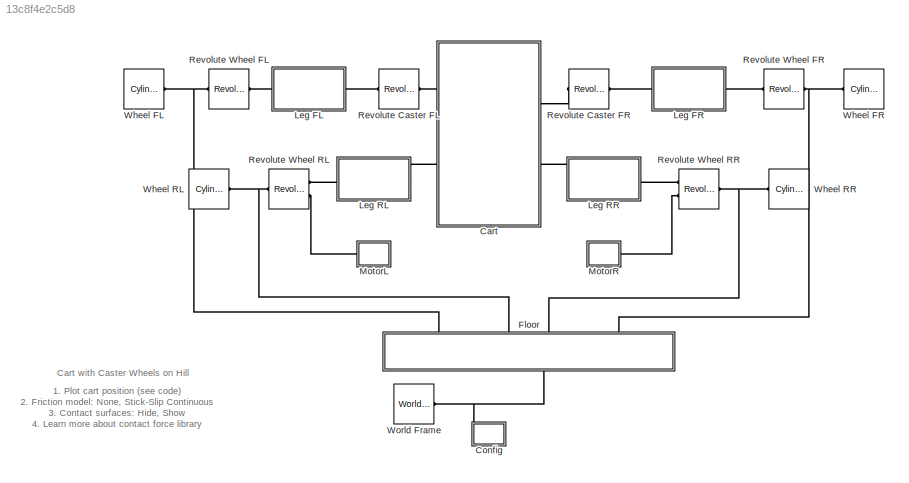
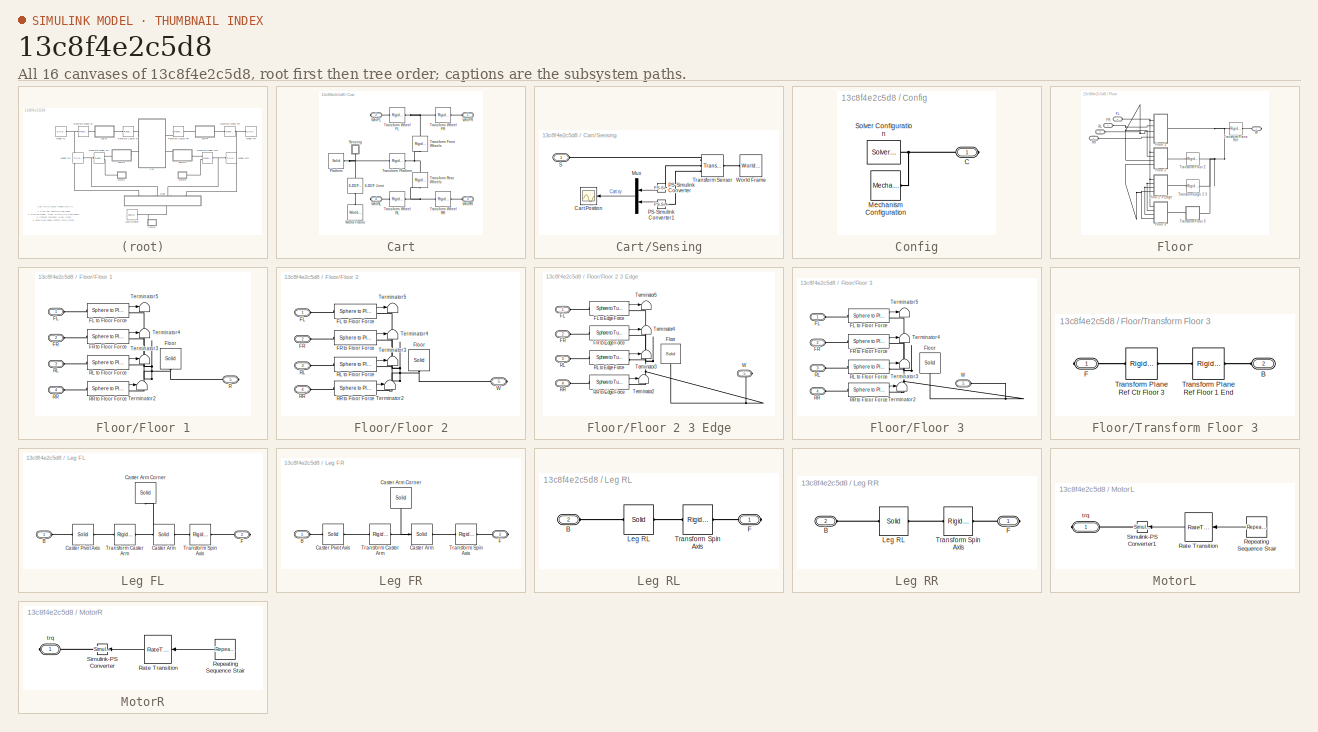
[diagram: thumbnail index - all 16 canvases of the model, root first then tree order]
MODEL slx_13c8f4e2c5d8
KIND model
CONFIG AbsTol = 1e-5
CONFIG EnableMultiTasking = on
CONFIG FixedStep = 1e-3
CONFIG MaxStep = 0.01
CONFIG MinStep = auto
CONFIG RelTol = 1e-4
CONFIG SampleTimeConstraint = Unconstrained
CONFIG Solver = ode23t
CONFIG SolverName = ode23t
CONFIG StartFcn = tic;
CONFIG StartTime = 0.0
CONFIG StopFcn = Elapsed_Sim_Time = toc;\ndisp(['Elapsed Sim Time = ' num2str(Elapsed_Sim_Time)]);\n
CONFIG StopTime = 2.5
WORKSPACE source: MATLAB code (in-file)
WORKSPACE code: whl.rad = 0.02;
WORKSPACE code: whl.thickness = 0.005;
WORKSPACE code: axle.length = 0.2;
WORKSPACE code: axle.radius = 0.005;
WORKSPACE code: platform.width = 0.1;
WORKSPACE code: platform.length = 0.15;
WORKSPACE code: platform.thickness = 0.005;
WORKSPACE code: platform.offset = 0.05;
WORKSPACE code: caster_axis.rad = 0.005;
WORKSPACE code: caster_axis.length = 0.03;
WORKSPACE code: bumper.rad = platform.offset+whl.rad;
WORKSPACE code: table.length = 0.5;
WORKSPACE code: table.thickness = 0.01;
WORKSPACE code: tableWhl.contact.k = 1e3;
WORKSPACE code: tableWhl.contact.b = 1e2;
WORKSPACE code: steel.density = 8000; %kg/m^3
WORKSPACE code: start_pos.x = -0.2;
WORKSPACE code: start_pos.y = 0.2;
WORKSPACE l_whl_trq = [0 0 0 0.5 0 0 0 -0.5 1.0 0 0 0 -1.0 0.5 0 0 0 -0.5 -1.5 0 0 0 1.5].'*0.00005
WORKSPACE r_whl_trq = [0 0 0 2.0 0 0 0 -2.0 1.0 0 0 0 -1.0 1.0 0 0 0 -1.0 -1.5 0 0 0 1.5].'*0.00005
WORKSPACE l_whl_trq = [-0.45 0 -0.1 0 0]*7.5e-5*100
WORKSPACE r_whl_trq = [-0.45 0 -0.1 0 0]*7.5e-5*100
WORKSPACE muk = 0.7
WORKSPACE mus = 0.5
WORKSPACE vth = 1e-2  (= 0.01)
WORKSPACE flr1_len = 1
WORKSPACE flr1_wid = 0.5
WORKSPACE flr1_dep = 0.01
WORKSPACE flr1_ang = 0
WORKSPACE flr2_len = flr1_len/8  (= 0.125)
WORKSPACE flr2_wid = flr1_wid  (= 0.5)
WORKSPACE flr2_dep = flr1_dep  (= 0.01)
WORKSPACE flr2_ang = 10
WORKSPACE flr3_len = flr1_len/3  (= 0.333333333333)
WORKSPACE flr3_wid = flr1_wid  (= 0.5)
WORKSPACE flr3_dep = flr1_dep  (= 0.01)
WORKSPACE flr3_ang = 0
WORKSPACE flr_dep_pcnt = 0.1
WORKSPACE flr_clr = [1 1 1]*0.95
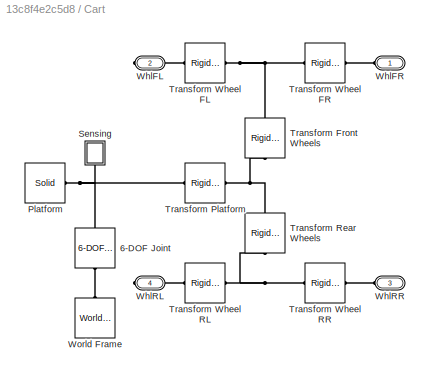
BLOCK [SubSystem] Cart
  Ports = [0, 0, 0, 0, 0, 2, 2]
  RequestExecContextInheritance = off
  Tag = CustomStyle
BLOCK [Reference] Cart/6-DOF Joint  REF=sm_lib/Joints/6-DOF Joint
  Ports = [0, 0, 0, 0, 0, 1, 1]
  SourceBlock = sm_lib/Joints/6-DOF Joint
  SourceProductBaseCode = MS
  SourceProductName = Simscape Multibody
  SourceType = 6-DOF Joint
BLOCK [Reference] Cart/Platform  REF=sm_lib/Body Elements/Solid
  Ports = [0, 0, 0, 0, 0, 0, 1]
  SourceBlock = sm_lib/Body Elements/Solid
  SourceProductBaseCode = MS
  SourceProductName = Simscape Multibody
  SourceType = Solid
BLOCK [SubSystem] Cart/Sensing
  Ports = [0, 0, 0, 0, 0, 1]
  RequestExecContextInheritance = off
BLOCK [Scope] Cart/Sensing/Cart Position
  Floating = off
  NumInputPorts = 1
  Ports = [1]
  ScopeSpecificationString = Simulink.scopes.TimeScopeBlockCfg('CurrentConfiguration', extmgr.ConfigurationSet(extmgr.Configuration('Core','General UI',true),extmgr.Configuration('Core','Source UI',true),extmgr.Configuration('Sources','WiredSimulink',true,'DataLoggingVariableName','ScopeData1','DataLoggingSaveFormat','Array','DataLoggingDecimation','1','DataLoggingDecimateData',true),extmgr.Configuration('Visuals','Time Domai...<+1669ch>
BLOCK [Mux] Cart/Sensing/Mux
  DisplayOption = bar
  Inputs = 2
  Ports = [2, 1]
BLOCK [Reference] Cart/Sensing/PS-Simulink Converter  REF=nesl_utility/PS-Simulink
Converter
  Ports = [0, 1, 0, 0, 0, 1]
  SourceBlock = nesl_utility/PS-Simulink\nConverter
  SourceProductBaseCode = SS
  SourceProductName = Simscape
  SourceType = PS-Simulink\nConverter
BLOCK [Reference] Cart/Sensing/PS-Simulink Converter1  REF=nesl_utility/PS-Simulink
Converter
  Ports = [0, 1, 0, 0, 0, 1]
  SourceBlock = nesl_utility/PS-Simulink\nConverter
  SourceProductBaseCode = SS
  SourceProductName = Simscape
  SourceType = PS-Simulink\nConverter
BLOCK [PMIOPort] Cart/Sensing/S
  Side = Left
BLOCK [Reference] Cart/Sensing/Transform Sensor  REF=sm_lib/Frames and
Transforms/Transform
Sensor
  Ports = [0, 0, 0, 0, 0, 1, 3]
  SourceBlock = sm_lib/Frames and\nTransforms/Transform\nSensor
  SourceProductBaseCode = MS
  SourceProductName = Simscape Multibody
  SourceType = Transform\nSensor
BLOCK [Reference] Cart/Sensing/World Frame  REF=sm_lib/Frames and
Transforms/World Frame
  Ports = [0, 0, 0, 0, 0, 0, 1]
  SourceBlock = sm_lib/Frames and\nTransforms/World Frame
  SourceProductBaseCode = MS
  SourceProductName = Simscape Multibody
  SourceType = World Frame
BLOCK [Reference] Cart/Transform Front Wheels  REF=sm_lib/Frames and
Transforms/Rigid
Transform
  Ports = [0, 0, 0, 0, 0, 1, 1]
  SourceBlock = sm_lib/Frames and\nTransforms/Rigid\nTransform
  SourceProductBaseCode = MS
  SourceProductName = Simscape Multibody
  SourceType = Rigid\nTransform
BLOCK [Reference] Cart/Transform Platform  REF=sm_lib/Frames and
Transforms/Rigid
Transform
  Ports = [0, 0, 0, 0, 0, 1, 1]
  SourceBlock = sm_lib/Frames and\nTransforms/Rigid\nTransform
  SourceProductBaseCode = MS
  SourceProductName = Simscape Multibody
  SourceType = Rigid\nTransform
BLOCK [Reference] Cart/Transform Rear Wheels  REF=sm_lib/Frames and
Transforms/Rigid
Transform
  Ports = [0, 0, 0, 0, 0, 1, 1]
  SourceBlock = sm_lib/Frames and\nTransforms/Rigid\nTransform
  SourceProductBaseCode = MS
  SourceProductName = Simscape Multibody
  SourceType = Rigid\nTransform
BLOCK [Reference] Cart/Transform Wheel FL  REF=sm_lib/Frames and
Transforms/Rigid
Transform
  Ports = [0, 0, 0, 0, 0, 1, 1]
  SourceBlock = sm_lib/Frames and\nTransforms/Rigid\nTransform
  SourceProductBaseCode = MS
  SourceProductName = Simscape Multibody
  SourceType = Rigid\nTransform
BLOCK [Reference] Cart/Transform Wheel FR  REF=sm_lib/Frames and
Transforms/Rigid
Transform
  Ports = [0, 0, 0, 0, 0, 1, 1]
  SourceBlock = sm_lib/Frames and\nTransforms/Rigid\nTransform
  SourceProductBaseCode = MS
  SourceProductName = Simscape Multibody
  SourceType = Rigid\nTransform
BLOCK [Reference] Cart/Transform Wheel RL  REF=sm_lib/Frames and
Transforms/Rigid
Transform
  Ports = [0, 0, 0, 0, 0, 1, 1]
  SourceBlock = sm_lib/Frames and\nTransforms/Rigid\nTransform
  SourceProductBaseCode = MS
  SourceProductName = Simscape Multibody
  SourceType = Rigid\nTransform
BLOCK [Reference] Cart/Transform Wheel RR  REF=sm_lib/Frames and
Transforms/Rigid
Transform
  Ports = [0, 0, 0, 0, 0, 1, 1]
  SourceBlock = sm_lib/Frames and\nTransforms/Rigid\nTransform
  SourceProductBaseCode = MS
  SourceProductName = Simscape Multibody
  SourceType = Rigid\nTransform
BLOCK [PMIOPort] Cart/WhlFL
  Port = 2
  Side = Right
BLOCK [PMIOPort] Cart/WhlFR
  Side = Left
BLOCK [PMIOPort] Cart/WhlRL
  Port = 4
  Side = Right
BLOCK [PMIOPort] Cart/WhlRR
  Port = 3
  Side = Left
BLOCK [Reference] Cart/World Frame  REF=sm_lib/Frames and
Transforms/World Frame
  Ports = [0, 0, 0, 0, 0, 0, 1]
  SourceBlock = sm_lib/Frames and\nTransforms/World Frame
  SourceProductBaseCode = MS
  SourceProductName = Simscape Multibody
  SourceType = World Frame
BLOCK [SubSystem] Config
  Ports = [0, 0, 0, 0, 0, 0, 1]
  RequestExecContextInheritance = off
BLOCK [PMIOPort] Config/C
  Side = Right
BLOCK [Reference] Config/Mechanism Configuration  REF=sm_lib/Utilities/Mechanism
Configuration
  Ports = [0, 0, 0, 0, 0, 0, 1]
  SourceBlock = sm_lib/Utilities/Mechanism\nConfiguration
  SourceProductBaseCode = MS
  SourceProductName = Simscape Multibody
  SourceType = Mechanism\nConfiguration
BLOCK [Reference] Config/Solver Configuration  REF=nesl_utility/Solver
Configuration
  Ports = [0, 0, 0, 0, 0, 0, 1]
  SourceBlock = nesl_utility/Solver\nConfiguration
  SourceProductBaseCode = SS
  SourceProductName = Simscape
  SourceType = Solver\nConfiguration
BLOCK [SubSystem] Floor
  Ports = [0, 0, 0, 0, 0, 4, 1]
  RequestExecContextInheritance = off
BLOCK [PMIOPort] Floor/FL
  Port = 2
  Side = Left
BLOCK [PMIOPort] Floor/FR
  Port = 5
  Side = Left
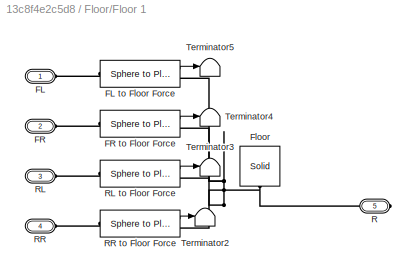
BLOCK [SubSystem] Floor/Floor 1
  Ports = [0, 0, 0, 0, 0, 4, 1]
  RequestExecContextInheritance = off
  Tag = PublishSubsystem
BLOCK [PMIOPort] Floor/Floor 1/FL
  Side = Left
BLOCK [Reference] Floor/Floor 1/FL to Floor Force  REF=Contact_Forces_Lib/3D/Sphere to Plane Force
  Ports = [0, 1, 0, 0, 0, 1, 1]
  SourceBlock = Contact_Forces_Lib/3D/Sphere to Plane Force
  SourceProductName = Simscape Multibody Contact Forces Library
  SourceType = Sphere to Plane Force
BLOCK [PMIOPort] Floor/Floor 1/FR
  Port = 2
  Side = Left
BLOCK [Reference] Floor/Floor 1/FR to Floor Force  REF=Contact_Forces_Lib/3D/Sphere to Plane Force
  Ports = [0, 1, 0, 0, 0, 1, 1]
  SourceBlock = Contact_Forces_Lib/3D/Sphere to Plane Force
  SourceProductName = Simscape Multibody Contact Forces Library
  SourceType = Sphere to Plane Force
BLOCK [Reference] Floor/Floor 1/Floor  REF=sm_lib/Body Elements/Solid
  Ports = [0, 0, 0, 0, 0, 0, 1]
  SourceBlock = sm_lib/Body Elements/Solid
  SourceProductBaseCode = MS
  SourceProductName = Simscape Multibody
  SourceType = Solid
BLOCK [PMIOPort] Floor/Floor 1/R
  Port = 5
  Side = Right
BLOCK [PMIOPort] Floor/Floor 1/RL
  Port = 3
  Side = Left
BLOCK [Reference] Floor/Floor 1/RL to Floor Force  REF=Contact_Forces_Lib/3D/Sphere to Plane Force
  Ports = [0, 1, 0, 0, 0, 1, 1]
  SourceBlock = Contact_Forces_Lib/3D/Sphere to Plane Force
  SourceProductName = Simscape Multibody Contact Forces Library
  SourceType = Sphere to Plane Force
BLOCK [PMIOPort] Floor/Floor 1/RR
  Port = 4
  Side = Left
BLOCK [Reference] Floor/Floor 1/RR to Floor Force  REF=Contact_Forces_Lib/3D/Sphere to Plane Force
  Ports = [0, 1, 0, 0, 0, 1, 1]
  SourceBlock = Contact_Forces_Lib/3D/Sphere to Plane Force
  SourceProductName = Simscape Multibody Contact Forces Library
  SourceType = Sphere to Plane Force
BLOCK [Terminator] Floor/Floor 1/Terminator2
BLOCK [Terminator] Floor/Floor 1/Terminator3
BLOCK [Terminator] Floor/Floor 1/Terminator4
BLOCK [Terminator] Floor/Floor 1/Terminator5
BLOCK [SubSystem] Floor/Floor 2
  Ports = [0, 0, 0, 0, 0, 4, 1]
  RequestExecContextInheritance = off
BLOCK [SubSystem] Floor/Floor 2 3 Edge
  Ports = [0, 0, 0, 0, 0, 4, 1]
  RequestExecContextInheritance = off
BLOCK [PMIOPort] Floor/Floor 2 3 Edge/FL
  Side = Left
BLOCK [Reference] Floor/Floor 2 3 Edge/FL to Edge Force  REF=Contact_Forces_Lib/3D/Sphere to Tube Force
  Ports = [0, 1, 0, 0, 0, 1, 1]
  SourceBlock = Contact_Forces_Lib/3D/Sphere to Tube Force
  SourceProductName = Simscape Multibody Contact Forces Library
  SourceType = Sphere to Tube Force
BLOCK [PMIOPort] Floor/Floor 2 3 Edge/FR
  Port = 2
  Side = Left
BLOCK [Reference] Floor/Floor 2 3 Edge/FR to Edge Force  REF=Contact_Forces_Lib/3D/Sphere to Tube Force
  Ports = [0, 1, 0, 0, 0, 1, 1]
  SourceBlock = Contact_Forces_Lib/3D/Sphere to Tube Force
  SourceProductName = Simscape Multibody Contact Forces Library
  SourceType = Sphere to Tube Force
BLOCK [Reference] Floor/Floor 2 3 Edge/Floor  REF=sm_lib/Body Elements/Solid
  Ports = [0, 0, 0, 0, 0, 0, 1]
  SourceBlock = sm_lib/Body Elements/Solid
  SourceProductBaseCode = MS
  SourceProductName = Simscape Multibody
  SourceType = Solid
BLOCK [PMIOPort] Floor/Floor 2 3 Edge/RL
  Port = 3
  Side = Left
BLOCK [Reference] Floor/Floor 2 3 Edge/RL to Edge Force  REF=Contact_Forces_Lib/3D/Sphere to Tube Force
  Ports = [0, 1, 0, 0, 0, 1, 1]
  SourceBlock = Contact_Forces_Lib/3D/Sphere to Tube Force
  SourceProductName = Simscape Multibody Contact Forces Library
  SourceType = Sphere to Tube Force
BLOCK [PMIOPort] Floor/Floor 2 3 Edge/RR
  Port = 4
  Side = Left
BLOCK [Reference] Floor/Floor 2 3 Edge/RR to Edge Force  REF=Contact_Forces_Lib/3D/Sphere to Tube Force
  Ports = [0, 1, 0, 0, 0, 1, 1]
  SourceBlock = Contact_Forces_Lib/3D/Sphere to Tube Force
  SourceProductName = Simscape Multibody Contact Forces Library
  SourceType = Sphere to Tube Force
BLOCK [Terminator] Floor/Floor 2 3 Edge/Terminator2
BLOCK [Terminator] Floor/Floor 2 3 Edge/Terminator3
BLOCK [Terminator] Floor/Floor 2 3 Edge/Terminator4
BLOCK [Terminator] Floor/Floor 2 3 Edge/Terminator5
BLOCK [PMIOPort] Floor/Floor 2 3 Edge/W
  Port = 5
  Side = Right
BLOCK [PMIOPort] Floor/Floor 2/FL
  Side = Left
BLOCK [Reference] Floor/Floor 2/FL to Floor Force  REF=Contact_Forces_Lib/3D/Sphere to Plane Force
  Ports = [0, 1, 0, 0, 0, 1, 1]
  SourceBlock = Contact_Forces_Lib/3D/Sphere to Plane Force
  SourceProductName = Simscape Multibody Contact Forces Library
  SourceType = Sphere to Plane Force
BLOCK [PMIOPort] Floor/Floor 2/FR
  Port = 2
  Side = Left
BLOCK [Reference] Floor/Floor 2/FR to Floor Force  REF=Contact_Forces_Lib/3D/Sphere to Plane Force
  Ports = [0, 1, 0, 0, 0, 1, 1]
  SourceBlock = Contact_Forces_Lib/3D/Sphere to Plane Force
  SourceProductName = Simscape Multibody Contact Forces Library
  SourceType = Sphere to Plane Force
BLOCK [Reference] Floor/Floor 2/Floor  REF=sm_lib/Body Elements/Solid
  Ports = [0, 0, 0, 0, 0, 0, 1]
  SourceBlock = sm_lib/Body Elements/Solid
  SourceProductBaseCode = MS
  SourceProductName = Simscape Multibody
  SourceType = Solid
BLOCK [PMIOPort] Floor/Floor 2/RL
  Port = 3
  Side = Left
BLOCK [Reference] Floor/Floor 2/RL to Floor Force  REF=Contact_Forces_Lib/3D/Sphere to Plane Force
  Ports = [0, 1, 0, 0, 0, 1, 1]
  SourceBlock = Contact_Forces_Lib/3D/Sphere to Plane Force
  SourceProductName = Simscape Multibody Contact Forces Library
  SourceType = Sphere to Plane Force
BLOCK [PMIOPort] Floor/Floor 2/RR
  Port = 4
  Side = Left
BLOCK [Reference] Floor/Floor 2/RR to Floor Force  REF=Contact_Forces_Lib/3D/Sphere to Plane Force
  Ports = [0, 1, 0, 0, 0, 1, 1]
  SourceBlock = Contact_Forces_Lib/3D/Sphere to Plane Force
  SourceProductName = Simscape Multibody Contact Forces Library
  SourceType = Sphere to Plane Force
BLOCK [Terminator] Floor/Floor 2/Terminator2
BLOCK [Terminator] Floor/Floor 2/Terminator3
BLOCK [Terminator] Floor/Floor 2/Terminator4
BLOCK [Terminator] Floor/Floor 2/Terminator5
BLOCK [PMIOPort] Floor/Floor 2/W
  Port = 5
  Side = Right
BLOCK [SubSystem] Floor/Floor 3
  Ports = [0, 0, 0, 0, 0, 4, 1]
  RequestExecContextInheritance = off
BLOCK [PMIOPort] Floor/Floor 3/FL
  Side = Left
BLOCK [Reference] Floor/Floor 3/FL to Floor Force  REF=Contact_Forces_Lib/3D/Sphere to Plane Force
  Ports = [0, 1, 0, 0, 0, 1, 1]
  SourceBlock = Contact_Forces_Lib/3D/Sphere to Plane Force
  SourceProductName = Simscape Multibody Contact Forces Library
  SourceType = Sphere to Plane Force
BLOCK [PMIOPort] Floor/Floor 3/FR
  Port = 2
  Side = Left
BLOCK [Reference] Floor/Floor 3/FR to Floor Force  REF=Contact_Forces_Lib/3D/Sphere to Plane Force
  Ports = [0, 1, 0, 0, 0, 1, 1]
  SourceBlock = Contact_Forces_Lib/3D/Sphere to Plane Force
  SourceProductName = Simscape Multibody Contact Forces Library
  SourceType = Sphere to Plane Force
BLOCK [Reference] Floor/Floor 3/Floor  REF=sm_lib/Body Elements/Solid
  Ports = [0, 0, 0, 0, 0, 0, 1]
  SourceBlock = sm_lib/Body Elements/Solid
  SourceProductBaseCode = MS
  SourceProductName = Simscape Multibody
  SourceType = Solid
BLOCK [PMIOPort] Floor/Floor 3/RL
  Port = 3
  Side = Left
BLOCK [Reference] Floor/Floor 3/RL to Floor Force  REF=Contact_Forces_Lib/3D/Sphere to Plane Force
  Ports = [0, 1, 0, 0, 0, 1, 1]
  SourceBlock = Contact_Forces_Lib/3D/Sphere to Plane Force
  SourceProductName = Simscape Multibody Contact Forces Library
  SourceType = Sphere to Plane Force
BLOCK [PMIOPort] Floor/Floor 3/RR
  Port = 4
  Side = Left
BLOCK [Reference] Floor/Floor 3/RR to Floor Force  REF=Contact_Forces_Lib/3D/Sphere to Plane Force
  Ports = [0, 1, 0, 0, 0, 1, 1]
  SourceBlock = Contact_Forces_Lib/3D/Sphere to Plane Force
  SourceProductName = Simscape Multibody Contact Forces Library
  SourceType = Sphere to Plane Force
BLOCK [Terminator] Floor/Floor 3/Terminator2
BLOCK [Terminator] Floor/Floor 3/Terminator3
BLOCK [Terminator] Floor/Floor 3/Terminator4
BLOCK [Terminator] Floor/Floor 3/Terminator5
BLOCK [PMIOPort] Floor/Floor 3/W
  Port = 5
  Side = Right
BLOCK [PMIOPort] Floor/RL
  Port = 3
  Side = Left
BLOCK [PMIOPort] Floor/RR
  Port = 4
  Side = Left
BLOCK [Reference] Floor/Transform Edge 2 3  REF=sm_lib/Frames and
Transforms/Rigid
Transform
  Ports = [0, 0, 0, 0, 0, 1, 1]
  SourceBlock = sm_lib/Frames and\nTransforms/Rigid\nTransform
  SourceProductBaseCode = MS
  SourceProductName = Simscape Multibody
  SourceType = Rigid\nTransform
BLOCK [Reference] Floor/Transform Floor 2  REF=sm_lib/Frames and
Transforms/Rigid
Transform
  Ports = [0, 0, 0, 0, 0, 1, 1]
  SourceBlock = sm_lib/Frames and\nTransforms/Rigid\nTransform
  SourceProductBaseCode = MS
  SourceProductName = Simscape Multibody
  SourceType = Rigid\nTransform
BLOCK [SubSystem] Floor/Transform Floor 3
  Ports = [0, 0, 0, 0, 0, 1, 1]
  RequestExecContextInheritance = off
BLOCK [PMIOPort] Floor/Transform Floor 3/B
  Port = 2
  Side = Left
BLOCK [PMIOPort] Floor/Transform Floor 3/F
  Side = Right
BLOCK [Reference] Floor/Transform Floor 3/Transform Plane Ref Ctr Floor 3  REF=sm_lib/Frames and
Transforms/Rigid
Transform
  Ports = [0, 0, 0, 0, 0, 1, 1]
  SourceBlock = sm_lib/Frames and\nTransforms/Rigid\nTransform
  SourceProductBaseCode = MS
  SourceProductName = Simscape Multibody
  SourceType = Rigid\nTransform
BLOCK [Reference] Floor/Transform Floor 3/Transform Plane Ref Floor 1 End  REF=sm_lib/Frames and
Transforms/Rigid
Transform
  Ports = [0, 0, 0, 0, 0, 1, 1]
  SourceBlock = sm_lib/Frames and\nTransforms/Rigid\nTransform
  SourceProductBaseCode = MS
  SourceProductName = Simscape Multibody
  SourceType = Rigid\nTransform
BLOCK [Reference] Floor/Transform Plane Ref  REF=sm_lib/Frames and
Transforms/Rigid
Transform
  Ports = [0, 0, 0, 0, 0, 1, 1]
  SourceBlock = sm_lib/Frames and\nTransforms/Rigid\nTransform
  SourceProductBaseCode = MS
  SourceProductName = Simscape Multibody
  SourceType = Rigid\nTransform
BLOCK [PMIOPort] Floor/W
  Side = Right
BLOCK [SubSystem] Leg FL
  Ports = [0, 0, 0, 0, 0, 1, 1]
  RequestExecContextInheritance = off
BLOCK [PMIOPort] Leg FL/B
  Side = Left
BLOCK [Reference] Leg FL/Caster Arm  REF=sm_lib/Body Elements/Solid
  Ports = [0, 0, 0, 0, 0, 1, 1]
  SourceBlock = sm_lib/Body Elements/Solid
  SourceProductBaseCode = MS
  SourceProductName = Simscape Multibody
  SourceType = Solid
BLOCK [Reference] Leg FL/Caster Arm Corner  REF=sm_lib/Body Elements/Solid
  Ports = [0, 0, 0, 0, 0, 0, 1]
  SourceBlock = sm_lib/Body Elements/Solid
  SourceProductBaseCode = MS
  SourceProductName = Simscape Multibody
  SourceType = Solid
BLOCK [Reference] Leg FL/Caster Pivot Axis  REF=sm_lib/Body Elements/Solid
  Ports = [0, 0, 0, 0, 0, 1, 1]
  SourceBlock = sm_lib/Body Elements/Solid
  SourceProductBaseCode = MS
  SourceProductName = Simscape Multibody
  SourceType = Solid
BLOCK [PMIOPort] Leg FL/F
  Port = 2
  Side = Right
BLOCK [Reference] Leg FL/Transform Caster Arm  REF=sm_lib/Frames and
Transforms/Rigid
Transform
  Ports = [0, 0, 0, 0, 0, 1, 1]
  SourceBlock = sm_lib/Frames and\nTransforms/Rigid\nTransform
  SourceProductBaseCode = MS
  SourceProductName = Simscape Multibody
  SourceType = Rigid\nTransform
BLOCK [Reference] Leg FL/Transform Spin Axis  REF=sm_lib/Frames and
Transforms/Rigid
Transform
  Ports = [0, 0, 0, 0, 0, 1, 1]
  SourceBlock = sm_lib/Frames and\nTransforms/Rigid\nTransform
  SourceProductBaseCode = MS
  SourceProductName = Simscape Multibody
  SourceType = Rigid\nTransform
BLOCK [SubSystem] Leg FR
  Ports = [0, 0, 0, 0, 0, 1, 1]
  RequestExecContextInheritance = off
BLOCK [PMIOPort] Leg FR/B
  Side = Left
BLOCK [Reference] Leg FR/Caster Arm  REF=sm_lib/Body Elements/Solid
  Ports = [0, 0, 0, 0, 0, 1, 1]
  SourceBlock = sm_lib/Body Elements/Solid
  SourceProductBaseCode = MS
  SourceProductName = Simscape Multibody
  SourceType = Solid
BLOCK [Reference] Leg FR/Caster Arm Corner  REF=sm_lib/Body Elements/Solid
  Ports = [0, 0, 0, 0, 0, 0, 1]
  SourceBlock = sm_lib/Body Elements/Solid
  SourceProductBaseCode = MS
  SourceProductName = Simscape Multibody
  SourceType = Solid
BLOCK [Reference] Leg FR/Caster Pivot Axis  REF=sm_lib/Body Elements/Solid
  Ports = [0, 0, 0, 0, 0, 1, 1]
  SourceBlock = sm_lib/Body Elements/Solid
  SourceProductBaseCode = MS
  SourceProductName = Simscape Multibody
  SourceType = Solid
BLOCK [PMIOPort] Leg FR/F
  Port = 2
  Side = Right
BLOCK [Reference] Leg FR/Transform Caster Arm  REF=sm_lib/Frames and
Transforms/Rigid
Transform
  Ports = [0, 0, 0, 0, 0, 1, 1]
  SourceBlock = sm_lib/Frames and\nTransforms/Rigid\nTransform
  SourceProductBaseCode = MS
  SourceProductName = Simscape Multibody
  SourceType = Rigid\nTransform
BLOCK [Reference] Leg FR/Transform Spin Axis  REF=sm_lib/Frames and
Transforms/Rigid
Transform
  Ports = [0, 0, 0, 0, 0, 1, 1]
  SourceBlock = sm_lib/Frames and\nTransforms/Rigid\nTransform
  SourceProductBaseCode = MS
  SourceProductName = Simscape Multibody
  SourceType = Rigid\nTransform
BLOCK [SubSystem] Leg RL
  Ports = [0, 0, 0, 0, 0, 1, 1]
  RequestExecContextInheritance = off
BLOCK [PMIOPort] Leg RL/B
  Port = 2
  Side = Left
BLOCK [PMIOPort] Leg RL/F
  Side = Right
BLOCK [Reference] Leg RL/Leg RL  REF=sm_lib/Body Elements/Solid
  Ports = [0, 0, 0, 0, 0, 1, 1]
  SourceBlock = sm_lib/Body Elements/Solid
  SourceProductBaseCode = MS
  SourceProductName = Simscape Multibody
  SourceType = Solid
BLOCK [Reference] Leg RL/Transform Spin Axis  REF=sm_lib/Frames and
Transforms/Rigid
Transform
  Ports = [0, 0, 0, 0, 0, 1, 1]
  SourceBlock = sm_lib/Frames and\nTransforms/Rigid\nTransform
  SourceProductBaseCode = MS
  SourceProductName = Simscape Multibody
  SourceType = Rigid\nTransform
BLOCK [SubSystem] Leg RR
  Ports = [0, 0, 0, 0, 0, 1, 1]
  RequestExecContextInheritance = off
BLOCK [PMIOPort] Leg RR/B
  Port = 2
  Side = Left
BLOCK [PMIOPort] Leg RR/F
  Side = Right
BLOCK [Reference] Leg RR/Leg RL  REF=sm_lib/Body Elements/Solid
  Ports = [0, 0, 0, 0, 0, 1, 1]
  SourceBlock = sm_lib/Body Elements/Solid
  SourceProductBaseCode = MS
  SourceProductName = Simscape Multibody
  SourceType = Solid
BLOCK [Reference] Leg RR/Transform Spin Axis  REF=sm_lib/Frames and
Transforms/Rigid
Transform
  Ports = [0, 0, 0, 0, 0, 1, 1]
  SourceBlock = sm_lib/Frames and\nTransforms/Rigid\nTransform
  SourceProductBaseCode = MS
  SourceProductName = Simscape Multibody
  SourceType = Rigid\nTransform
BLOCK [SubSystem] MotorL
  Ports = [0, 0, 0, 0, 0, 0, 1]
  RequestExecContextInheritance = off
BLOCK [RateTransition] MotorL/Rate Transition
BLOCK [Reference] MotorL/Repeating Sequence Stair  REF=simulink/Sources/Repeating
Sequence
Stair
  Ports = [0, 1]
  SourceBlock = simulink/Sources/Repeating\nSequence\nStair
  SourceProductBaseCode = SL
  SourceProductName = Simulink
  SourceType = Repeating Sequence Stair
BLOCK [Reference] MotorL/Simulink-PS Converter1  REF=nesl_utility/Simulink-PS
Converter
  Ports = [1, 0, 0, 0, 0, 0, 1]
  SourceBlock = nesl_utility/Simulink-PS\nConverter
  SourceProductBaseCode = SS
  SourceProductName = Simscape
  SourceType = Simulink-PS\nConverter
BLOCK [PMIOPort] MotorL/trq
  Side = Right
BLOCK [SubSystem] MotorR
  Ports = [0, 0, 0, 0, 0, 0, 1]
  RequestExecContextInheritance = off
BLOCK [RateTransition] MotorR/Rate Transition
BLOCK [Reference] MotorR/Repeating Sequence Stair  REF=simulink/Sources/Repeating
Sequence
Stair
  Ports = [0, 1]
  SourceBlock = simulink/Sources/Repeating\nSequence\nStair
  SourceProductBaseCode = SL
  SourceProductName = Simulink
  SourceType = Repeating Sequence Stair
BLOCK [Reference] MotorR/Simulink-PS Converter  REF=nesl_utility/Simulink-PS
Converter
  Ports = [1, 0, 0, 0, 0, 0, 1]
  SourceBlock = nesl_utility/Simulink-PS\nConverter
  SourceProductBaseCode = SS
  SourceProductName = Simscape
  SourceType = Simulink-PS\nConverter
BLOCK [PMIOPort] MotorR/trq
  Side = Right
BLOCK [Reference] Revolute Caster FL  REF=sm_lib/Joints/Revolute Joint
  Ports = [0, 0, 0, 0, 0, 1, 1]
  SourceBlock = sm_lib/Joints/Revolute Joint
  SourceProductBaseCode = MS
  SourceProductName = Simscape Multibody
  SourceType = Revolute Joint
BLOCK [Reference] Revolute Caster FR  REF=sm_lib/Joints/Revolute Joint
  Ports = [0, 0, 0, 0, 0, 1, 1]
  SourceBlock = sm_lib/Joints/Revolute Joint
  SourceProductBaseCode = MS
  SourceProductName = Simscape Multibody
  SourceType = Revolute Joint
BLOCK [Reference] Revolute Wheel FL  REF=sm_lib/Joints/Revolute Joint
  Ports = [0, 0, 0, 0, 0, 1, 1]
  SourceBlock = sm_lib/Joints/Revolute Joint
  SourceProductBaseCode = MS
  SourceProductName = Simscape Multibody
  SourceType = Revolute Joint
BLOCK [Reference] Revolute Wheel FR  REF=sm_lib/Joints/Revolute Joint
  Ports = [0, 0, 0, 0, 0, 1, 1]
  SourceBlock = sm_lib/Joints/Revolute Joint
  SourceProductBaseCode = MS
  SourceProductName = Simscape Multibody
  SourceType = Revolute Joint
BLOCK [Reference] Revolute Wheel RL  REF=sm_lib/Joints/Revolute Joint
  Ports = [0, 0, 0, 0, 0, 2, 1]
  SourceBlock = sm_lib/Joints/Revolute Joint
  SourceProductBaseCode = MS
  SourceProductName = Simscape Multibody
  SourceType = Revolute Joint
BLOCK [Reference] Revolute Wheel RR  REF=sm_lib/Joints/Revolute Joint
  Ports = [0, 0, 0, 0, 0, 2, 1]
  SourceBlock = sm_lib/Joints/Revolute Joint
  SourceProductBaseCode = MS
  SourceProductName = Simscape Multibody
  SourceType = Revolute Joint
BLOCK [Reference] Wheel FL  REF=Parts_Lib/Cylinder
  Ports = [0, 0, 0, 0, 0, 1]
  SourceBlock = Parts_Lib/Cylinder
  SourceType = Solid Cylinder with Markings
  Tag = CustomStyle
BLOCK [Reference] Wheel FR  REF=Parts_Lib/Cylinder
  Ports = [0, 0, 0, 0, 0, 1]
  SourceBlock = Parts_Lib/Cylinder
  SourceType = Solid Cylinder with Markings
  Tag = CustomStyle
BLOCK [Reference] Wheel RL  REF=Parts_Lib/Cylinder
  Ports = [0, 0, 0, 0, 0, 1]
  SourceBlock = Parts_Lib/Cylinder
  SourceType = Solid Cylinder with Markings
  Tag = CustomStyle
BLOCK [Reference] Wheel RR  REF=Parts_Lib/Cylinder
  Ports = [0, 0, 0, 0, 0, 1]
  SourceBlock = Parts_Lib/Cylinder
  SourceType = Solid Cylinder with Markings
  Tag = CustomStyle
BLOCK [Reference] World Frame  REF=sm_lib/Frames and
Transforms/World Frame
  Ports = [0, 0, 0, 0, 0, 0, 1]
  SourceBlock = sm_lib/Frames and\nTransforms/World Frame
  SourceProductBaseCode = MS
  SourceProductName = Simscape Multibody
  SourceType = World Frame
ANNOTATION (root): 1. Plot cart position ( see code ) 2. Friction model: None , Stick-Slip Continuous 3. Contact surfaces: Hide , Show 4. Learn more about contact force library
ANNOTATION (root): Cart with Caster Wheels on Hill
LINE Cart/Sensing/Mux:1 -> Cart/Sensing/Cart Position:1
LINE Cart/Sensing/PS-Simulink Converter1:1 -> Cart/Sensing/Mux:2
LINE Cart/Sensing/PS-Simulink Converter:1 -> Cart/Sensing/Mux:1
LINE Floor/Floor 1/FL to Floor Force:1 -> Floor/Floor 1/Terminator5:1
LINE Floor/Floor 1/FR to Floor Force:1 -> Floor/Floor 1/Terminator4:1
LINE Floor/Floor 1/RL to Floor Force:1 -> Floor/Floor 1/Terminator3:1
LINE Floor/Floor 1/RR to Floor Force:1 -> Floor/Floor 1/Terminator2:1
LINE Floor/Floor 2 3 Edge/FL to Edge Force:1 -> Floor/Floor 2 3 Edge/Terminator5:1
LINE Floor/Floor 2 3 Edge/FR to Edge Force:1 -> Floor/Floor 2 3 Edge/Terminator4:1
LINE Floor/Floor 2 3 Edge/RL to Edge Force:1 -> Floor/Floor 2 3 Edge/Terminator3:1
LINE Floor/Floor 2 3 Edge/RR to Edge Force:1 -> Floor/Floor 2 3 Edge/Terminator2:1
LINE Floor/Floor 2/FL to Floor Force:1 -> Floor/Floor 2/Terminator5:1
LINE Floor/Floor 2/FR to Floor Force:1 -> Floor/Floor 2/Terminator4:1
LINE Floor/Floor 2/RL to Floor Force:1 -> Floor/Floor 2/Terminator3:1
LINE Floor/Floor 2/RR to Floor Force:1 -> Floor/Floor 2/Terminator2:1
LINE Floor/Floor 3/FL to Floor Force:1 -> Floor/Floor 3/Terminator5:1
LINE Floor/Floor 3/FR to Floor Force:1 -> Floor/Floor 3/Terminator4:1
LINE Floor/Floor 3/RL to Floor Force:1 -> Floor/Floor 3/Terminator3:1
LINE Floor/Floor 3/RR to Floor Force:1 -> Floor/Floor 3/Terminator2:1
LINE MotorL/Rate Transition:1 -> MotorL/Simulink-PS Converter1:1
LINE MotorL/Repeating Sequence Stair:1 -> MotorL/Rate Transition:1
LINE MotorR/Rate Transition:1 -> MotorR/Simulink-PS Converter:1
LINE MotorR/Repeating Sequence Stair:1 -> MotorR/Rate Transition:1
PLINE Cart/6-DOF Joint:LConn1 -- Cart/World Frame:RConn1
PNET net1: Cart/6-DOF Joint:RConn1 -- Cart/Platform:RConn1 -- Cart/Sensing:LConn1 -- Cart/Transform Platform:LConn1
PLINE Cart/Sensing/PS-Simulink Converter1:LConn1 -- Cart/Sensing/Transform Sensor:RConn3
PLINE Cart/Sensing/PS-Simulink Converter:LConn1 -- Cart/Sensing/Transform Sensor:RConn2
PLINE Cart/Sensing/S:RConn1 -- Cart/Sensing/Transform Sensor:RConn1
PLINE Cart/Sensing/Transform Sensor:LConn1 -- Cart/Sensing/World Frame:RConn1
PNET net2: Cart/Transform Front Wheels:LConn1 -- Cart/Transform Platform:RConn1 -- Cart/Transform Rear Wheels:RConn1
PNET net3: Cart/Transform Front Wheels:RConn1 -- Cart/Transform Wheel FL:LConn1 -- Cart/Transform Wheel FR:RConn1
PNET net4: Cart/Transform Rear Wheels:LConn1 -- Cart/Transform Wheel RL:LConn1 -- Cart/Transform Wheel RR:RConn1
PLINE Cart/Transform Wheel FL:RConn1 -- Cart/WhlFL:RConn1
PLINE Cart/Transform Wheel FR:LConn1 -- Cart/WhlFR:RConn1
PLINE Cart/Transform Wheel RL:RConn1 -- Cart/WhlRL:RConn1
PLINE Cart/Transform Wheel RR:LConn1 -- Cart/WhlRR:RConn1
PLINE Cart:LConn1 -- Revolute Caster FR:LConn1
PLINE Cart:LConn2 -- Leg RR:LConn1
PLINE Cart:RConn1 -- Revolute Caster FL:LConn1
PLINE Cart:RConn2 -- Leg RL:LConn1
PNET net5: Config/C:RConn1 -- Config/Mechanism Configuration:RConn1 -- Config/Solver Configuration:RConn1
PNET net6: Config:RConn1 -- Floor:RConn1 -- World Frame:RConn1
PNET net7: Floor/FL:RConn1 -- Floor/Floor 1:LConn1 -- Floor/Floor 2 3 Edge:LConn1 -- Floor/Floor 2:LConn1 -- Floor/Floor 3:LConn1
PNET net8: Floor/FR:RConn1 -- Floor/Floor 1:LConn2 -- Floor/Floor 2 3 Edge:LConn2 -- Floor/Floor 2:LConn2 -- Floor/Floor 3:LConn2
PLINE Floor/Floor 1/FL to Floor Force:LConn1 -- Floor/Floor 1/FL:RConn1
PNET net9: Floor/Floor 1/FL to Floor Force:RConn1 -- Floor/Floor 1/FR to Floor Force:RConn1 -- Floor/Floor 1/Floor:RConn1 -- Floor/Floor 1/R:RConn1 -- Floor/Floor 1/RL to Floor Force:RConn1 -- Floor/Floor 1/RR to Floor Force:RConn1
PLINE Floor/Floor 1/FR to Floor Force:LConn1 -- Floor/Floor 1/FR:RConn1
PLINE Floor/Floor 1/RL to Floor Force:LConn1 -- Floor/Floor 1/RL:RConn1
PLINE Floor/Floor 1/RR to Floor Force:LConn1 -- Floor/Floor 1/RR:RConn1
PNET net10: Floor/Floor 1:LConn3 -- Floor/Floor 2 3 Edge:LConn3 -- Floor/Floor 2:LConn3 -- Floor/Floor 3:LConn3 -- Floor/RL:RConn1
PNET net11: Floor/Floor 1:LConn4 -- Floor/Floor 2 3 Edge:LConn4 -- Floor/Floor 2:LConn4 -- Floor/Floor 3:LConn4 -- Floor/RR:RConn1
PNET net12: Floor/Floor 1:RConn1 -- Floor/Transform Edge 2 3:LConn1 -- Floor/Transform Floor 2:LConn1 -- Floor/Transform Floor 3:LConn1 -- Floor/Transform Plane Ref:RConn1
PLINE Floor/Floor 2 3 Edge/FL to Edge Force:LConn1 -- Floor/Floor 2 3 Edge/FL:RConn1
PNET net13: Floor/Floor 2 3 Edge/FL to Edge Force:RConn1 -- Floor/Floor 2 3 Edge/FR to Edge Force:RConn1 -- Floor/Floor 2 3 Edge/Floor:RConn1 -- Floor/Floor 2 3 Edge/RL to Edge Force:RConn1 -- Floor/Floor 2 3 Edge/RR to Edge Force:RConn1 -- Floor/Floor 2 3 Edge/W:RConn1
PLINE Floor/Floor 2 3 Edge/FR to Edge Force:LConn1 -- Floor/Floor 2 3 Edge/FR:RConn1
PLINE Floor/Floor 2 3 Edge/RL to Edge Force:LConn1 -- Floor/Floor 2 3 Edge/RL:RConn1
PLINE Floor/Floor 2 3 Edge/RR to Edge Force:LConn1 -- Floor/Floor 2 3 Edge/RR:RConn1
PLINE Floor/Floor 2 3 Edge:RConn1 -- Floor/Transform Edge 2 3:RConn1
PLINE Floor/Floor 2/FL to Floor Force:LConn1 -- Floor/Floor 2/FL:RConn1
PNET net14: Floor/Floor 2/FL to Floor Force:RConn1 -- Floor/Floor 2/FR to Floor Force:RConn1 -- Floor/Floor 2/Floor:RConn1 -- Floor/Floor 2/RL to Floor Force:RConn1 -- Floor/Floor 2/RR to Floor Force:RConn1 -- Floor/Floor 2/W:RConn1
PLINE Floor/Floor 2/FR to Floor Force:LConn1 -- Floor/Floor 2/FR:RConn1
PLINE Floor/Floor 2/RL to Floor Force:LConn1 -- Floor/Floor 2/RL:RConn1
PLINE Floor/Floor 2/RR to Floor Force:LConn1 -- Floor/Floor 2/RR:RConn1
PLINE Floor/Floor 2:RConn1 -- Floor/Transform Floor 2:RConn1
PLINE Floor/Floor 3/FL to Floor Force:LConn1 -- Floor/Floor 3/FL:RConn1
PNET net15: Floor/Floor 3/FL to Floor Force:RConn1 -- Floor/Floor 3/FR to Floor Force:RConn1 -- Floor/Floor 3/Floor:RConn1 -- Floor/Floor 3/RL to Floor Force:RConn1 -- Floor/Floor 3/RR to Floor Force:RConn1 -- Floor/Floor 3/W:RConn1
PLINE Floor/Floor 3/FR to Floor Force:LConn1 -- Floor/Floor 3/FR:RConn1
PLINE Floor/Floor 3/RL to Floor Force:LConn1 -- Floor/Floor 3/RL:RConn1
PLINE Floor/Floor 3/RR to Floor Force:LConn1 -- Floor/Floor 3/RR:RConn1
PLINE Floor/Floor 3:RConn1 -- Floor/Transform Floor 3:RConn1
PLINE Floor/Transform Floor 3/B:RConn1 -- Floor/Transform Floor 3/Transform Plane Ref Floor 1 End:LConn1
PLINE Floor/Transform Floor 3/F:RConn1 -- Floor/Transform Floor 3/Transform Plane Ref Ctr Floor 3:RConn1
PLINE Floor/Transform Floor 3/Transform Plane Ref Ctr Floor 3:LConn1 -- Floor/Transform Floor 3/Transform Plane Ref Floor 1 End:RConn1
PLINE Floor/Transform Plane Ref:LConn1 -- Floor/W:RConn1
PNET net16: Floor:LConn1 -- Revolute Wheel FL:RConn1 -- Wheel FL:LConn1
PNET net17: Floor:LConn2 -- Revolute Wheel RL:RConn1 -- Wheel RL:LConn1
PNET net18: Floor:LConn3 -- Revolute Wheel RR:RConn1 -- Wheel RR:LConn1
PNET net19: Floor:LConn4 -- Revolute Wheel FR:RConn1 -- Wheel FR:LConn1
PLINE Leg FL/B:RConn1 -- Leg FL/Caster Pivot Axis:LConn1
PNET net20: Leg FL/Caster Arm Corner:RConn1 -- Leg FL/Caster Arm:LConn1 -- Leg FL/Transform Caster Arm:RConn1
PLINE Leg FL/Caster Arm:RConn1 -- Leg FL/Transform Spin Axis:LConn1
PLINE Leg FL/Caster Pivot Axis:RConn1 -- Leg FL/Transform Caster Arm:LConn1
PLINE Leg FL/F:RConn1 -- Leg FL/Transform Spin Axis:RConn1
PLINE Leg FL:LConn1 -- Revolute Caster FL:RConn1
PLINE Leg FL:RConn1 -- Revolute Wheel FL:LConn1
PLINE Leg FR/B:RConn1 -- Leg FR/Caster Pivot Axis:LConn1
PNET net21: Leg FR/Caster Arm Corner:RConn1 -- Leg FR/Caster Arm:LConn1 -- Leg FR/Transform Caster Arm:RConn1
PLINE Leg FR/Caster Arm:RConn1 -- Leg FR/Transform Spin Axis:LConn1
PLINE Leg FR/Caster Pivot Axis:RConn1 -- Leg FR/Transform Caster Arm:LConn1
PLINE Leg FR/F:RConn1 -- Leg FR/Transform Spin Axis:RConn1
PLINE Leg FR:LConn1 -- Revolute Caster FR:RConn1
PLINE Leg FR:RConn1 -- Revolute Wheel FR:LConn1
PLINE Leg RL/B:RConn1 -- Leg RL/Leg RL:LConn1
PLINE Leg RL/F:RConn1 -- Leg RL/Transform Spin Axis:RConn1
PLINE Leg RL/Leg RL:RConn1 -- Leg RL/Transform Spin Axis:LConn1
PLINE Leg RL:RConn1 -- Revolute Wheel RL:LConn1
PLINE Leg RR/B:RConn1 -- Leg RR/Leg RL:LConn1
PLINE Leg RR/F:RConn1 -- Leg RR/Transform Spin Axis:RConn1
PLINE Leg RR/Leg RL:RConn1 -- Leg RR/Transform Spin Axis:LConn1
PLINE Leg RR:RConn1 -- Revolute Wheel RR:LConn1
PLINE MotorL/Simulink-PS Converter1:RConn1 -- MotorL/trq:RConn1
PLINE MotorL:RConn1 -- Revolute Wheel RL:LConn2
PLINE MotorR/Simulink-PS Converter:RConn1 -- MotorR/trq:RConn1
PLINE MotorR:RConn1 -- Revolute Wheel RR:LConn2
note: PNET lines group multi-terminal physical nets as a canonical sorted terminal list (undirected conserving connections); 2-terminal nets keep the pairwise PLINE form
